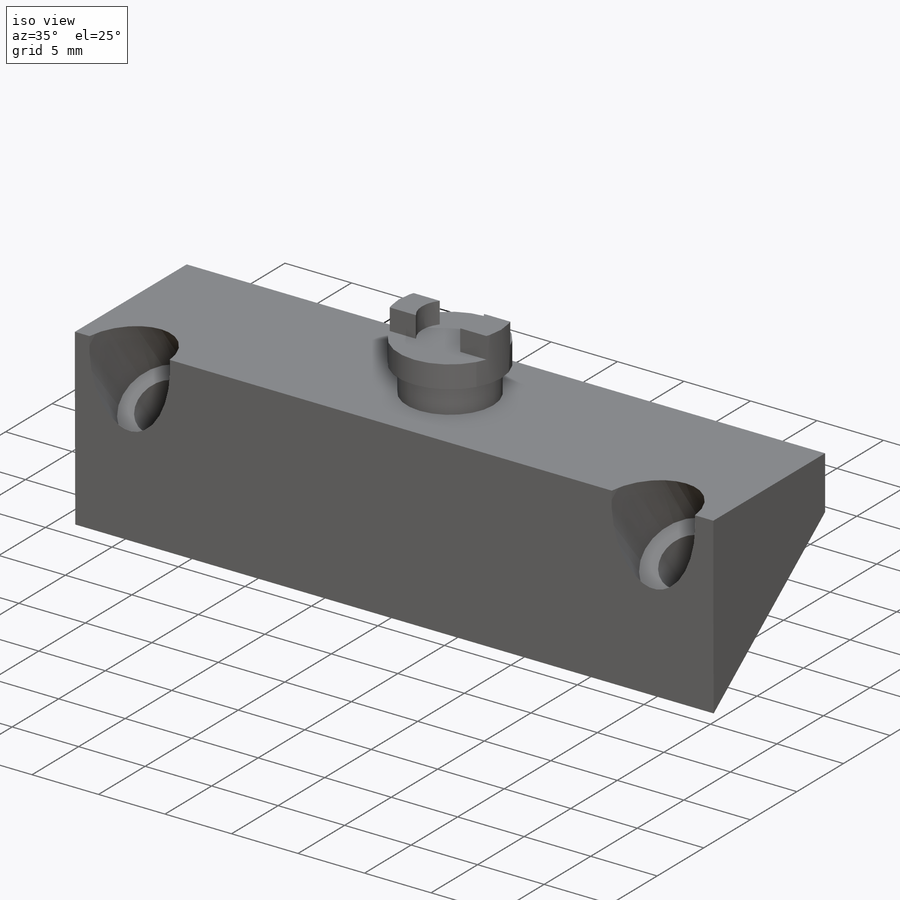
[diagram: iso view]
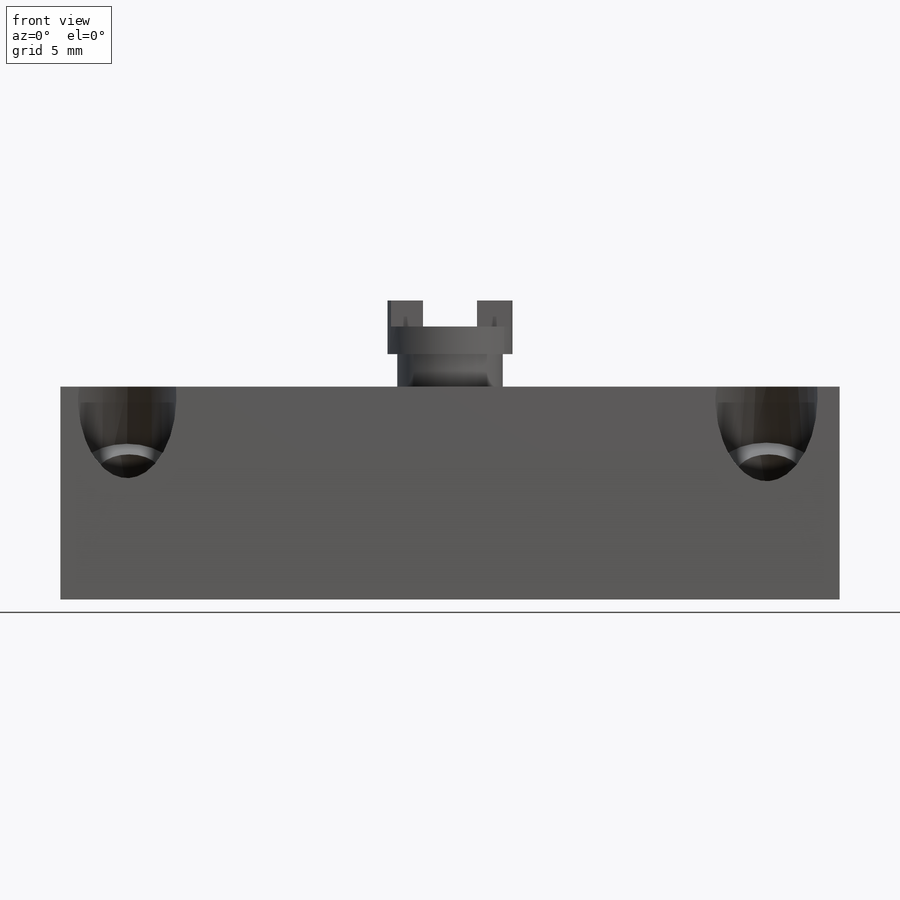
[diagram: front view]
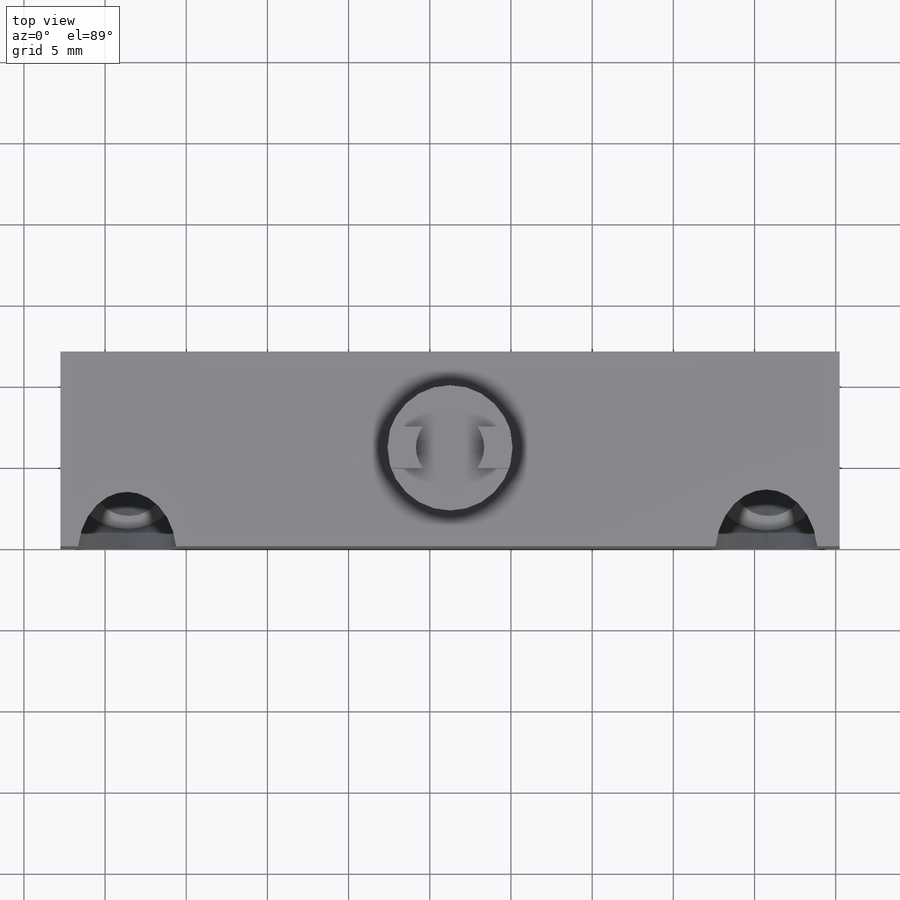
[diagram: top view]
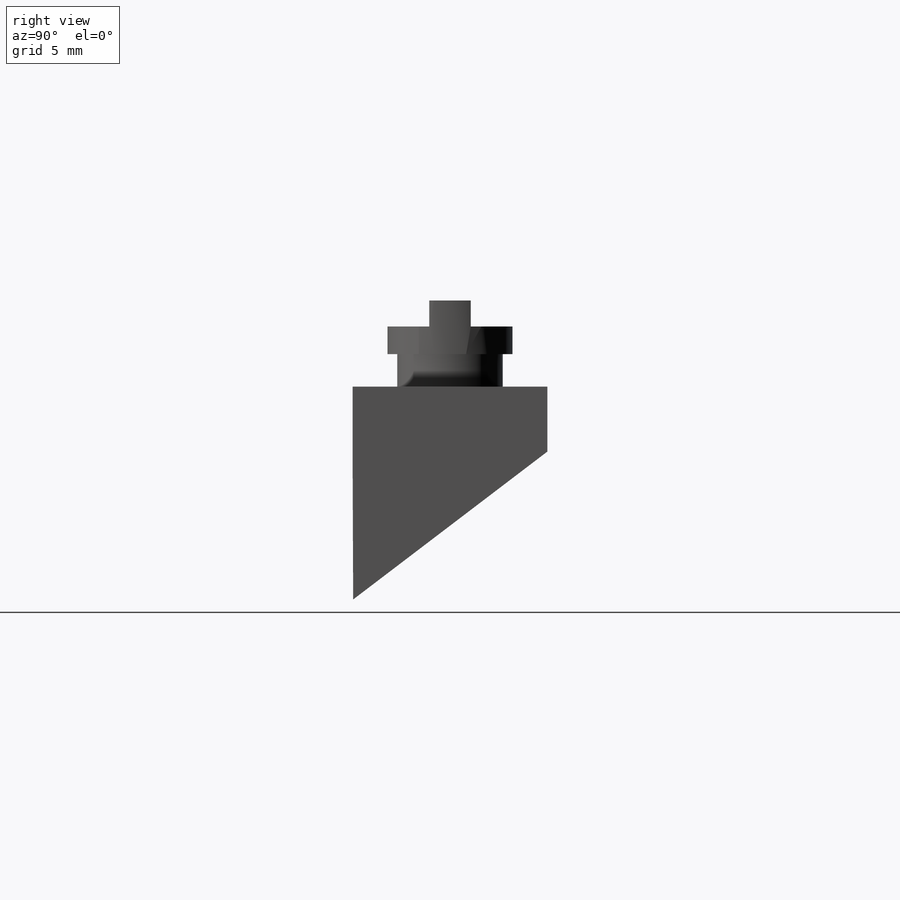
[diagram: right view]
SOLIDWORKS PART (.sldprt)
format: sldprt  version: not decoded by parser v0  size: 233,472 bytes
history: native  units: mm
features: sketch x9, extrude x4, cut_extrude x4, material x1 (+12 scaffold rows collapsed)
feature tree (30):
  scaffold x12  (default folders/planes/origin — collapsed)
  material  "Material <not specified>"
  sketch  "Sketch1"  dims[c1.D3=4.0mm c1.D5=4.0mm c1.D1=~22.750803mm c1.D2=~101.201849mm c2.D1=48.0mm c2.D2=12.0mm c2.D4=4.23mm c2.D6=39.4mm c2.D7=48.0mm]
  extrude  "Boss-Extrude2"  Depth=4mm
  sketch  "Sketch3"  dims[D1=6.5mm D2=24.0mm]
  extrude  "Boss-Extrude3"  Depth=2mm
  sketch  "Sketch4"  dims[D1=7.7mm]
  extrude  "Boss-Extrude4"  Depth=3.3mm
  sketch  "Sketch5"  dims[c1.D1=~0.306989mm c1.D2=~0.818638mm c2.D1=~3.104002mm c2.D2=~10.744623mm c3.D1=~1.773716mm c3.D2=12.0408mm c4.D1=1.28mm c4.D2=1.28mm]
  cut_extrude  "Cut-Extrude6"  Depth=1.6mm
  sketch  "Sketch6"  dims[D1=4.2mm]
  cut_extrude  "Cut-Extrude7"  Depth=1.6mm
  sketch  "Sketch7"  dims[D1=12.0mm]
  extrude  "Boss-Extrude5"  Depth=48mm
  sketch  "Sketch11"  dims[D1=4.0mm D2=4.0mm]
  cut_extrude  "Cut-Extrude12"  [1 undecoded]
  sketch  "3DSketch1"
  sketch  "3DSketch2"  dims[c1.D2=~3.150432mm c2.D2=~3.150432mm c3.D2=~3.036171mm c4.D2=~3.036171mm c4.D1=4.0mm]
  cut_extrude  "Cut-Extrude13"  Depth=10mm
decode coverage: 15 of 17 modeling features carry decoded parameters
note: ~ marks probable driven/reference dimensions
note: 1 parameter value undecoded
note: suppression state not decoded; provenance and decode notes live in map.json
